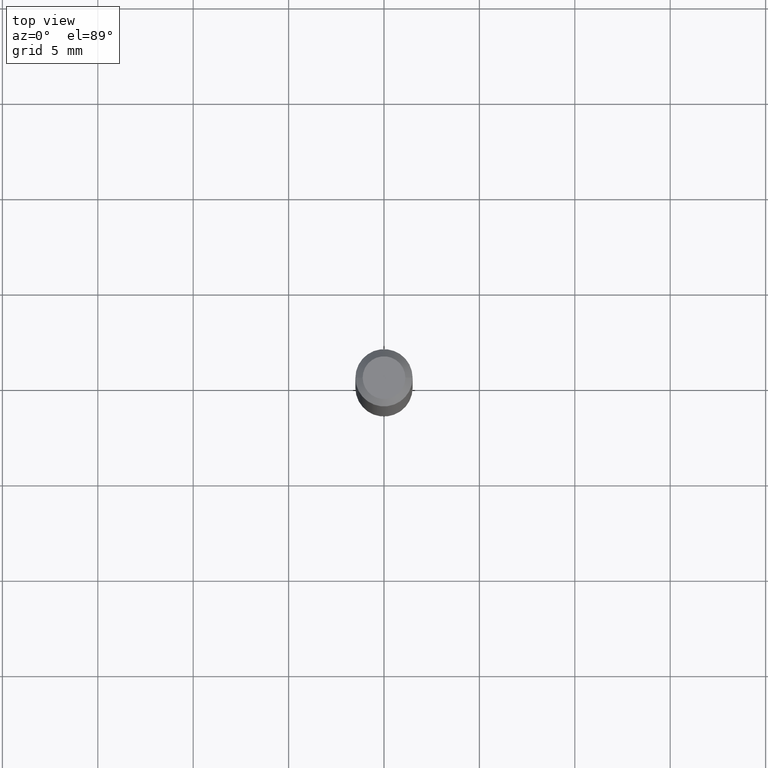
[diagram: clean part render]
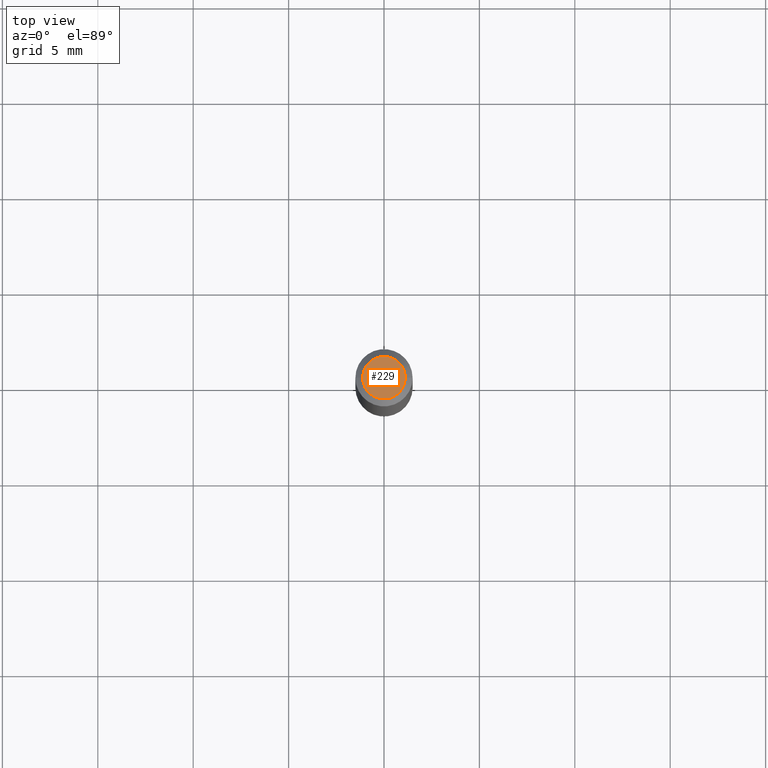
[diagram: same view with one face highlighted and labeled with its STEP entity id]
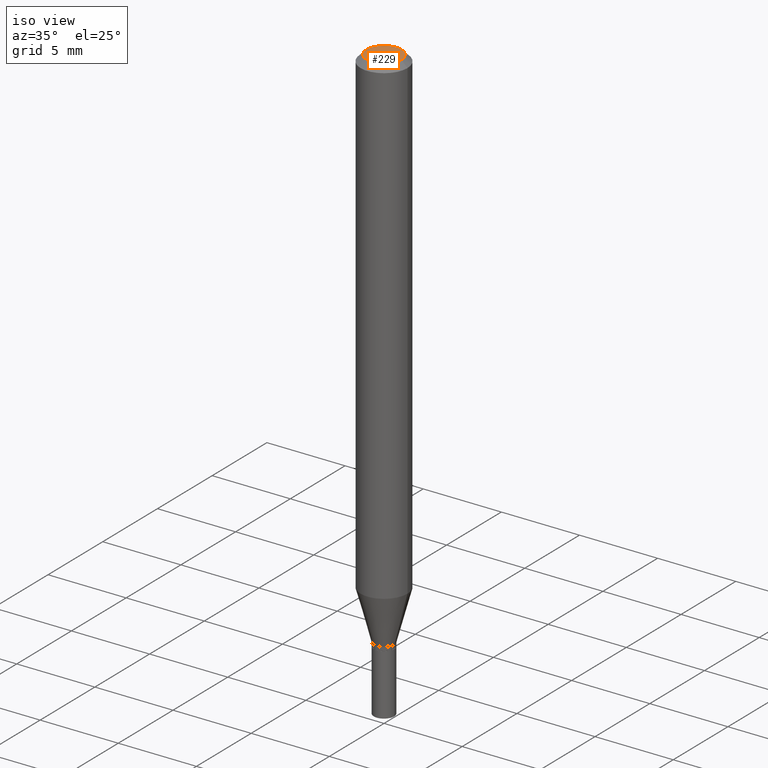
[diagram: same view with one face highlighted and labeled with its STEP entity id]
A machine part, top view. The second image highlights one B-rep face of the part: STEP entity #229.
A second angle (iso view) of the same face is appended — the face is thin or edge-on in the first view.
In plain terms, the highlighted planar face has unit normal (0, -0, -1).
Its self-contained STEP definition (entity closure, byte-faithful):
#20 = VERTEX_POINT ( 'NONE', #257 ) ;
#25 = ORIENTED_EDGE ( 'NONE', *, *, #351, .T. ) ;
#66 = CIRCLE ( 'NONE', #382, 0.04404999999999999888 ) ;
#68 = EDGE_LOOP ( 'NONE', ( #25, #74 ) ) ;
#74 = ORIENTED_EDGE ( 'NONE', *, *, #304, .T. ) ;
#78 = AXIS2_PLACEMENT_3D ( 'NONE', #234, #377, #202 ) ;
#129 = FACE_OUTER_BOUND ( 'NONE', #68, .T. ) ;
#147 = DIRECTION ( 'NONE',  ( 1.000000000000000000, -6.982962677686265922E-15, 4.819687581474398999E-29 ) ) ;
#180 = AXIS2_PLACEMENT_3D ( 'NONE', #278, #426, #147 ) ;
#202 = DIRECTION ( 'NONE',  ( -1.000000000000000000, 6.982962677686265922E-15, -4.876176775795935793E-29 ) ) ;
#229 = ADVANCED_FACE ( 'NONE', ( #129 ), #270, .F. ) ;
#234 = CARTESIAN_POINT ( 'NONE',  ( 3.075995059520799729E-16, 0.04404999999999999888, -3.177616157090649282E-16 ) ) ;
#247 = CARTESIAN_POINT ( 'NONE',  ( -0.04404999999999999888, 3.337856159934028715E-16, -3.279237254660510174E-16 ) ) ;
#257 = CARTESIAN_POINT ( 'NONE',  ( 0.04404999999999999888, -3.798447818264465995E-16, -3.279237254660463336E-16 ) ) ;
#270 = PLANE ( 'NONE',  #78 ) ;
#278 = CARTESIAN_POINT ( 'NONE',  ( 8.019272414352406998E-45, -1.144939568028632061E-30, -3.279237254660487495E-16 ) ) ;
#304 = EDGE_CURVE ( 'NONE', #20, #322, #328, .T. ) ;
#322 = VERTEX_POINT ( 'NONE', #247 ) ;
#328 = CIRCLE ( 'NONE', #180, 0.04404999999999999888 ) ;
#350 = DIRECTION ( 'NONE',  ( 1.000000000000000000, -6.982962677686265922E-15, 4.819687581474398999E-29 ) ) ;
#351 = EDGE_CURVE ( 'NONE', #322, #20, #66, .T. ) ;
#377 = DIRECTION ( 'NONE',  ( 2.438088387897960049E-29, -3.491481338843145188E-15, -1.000000000000000000 ) ) ;
#382 = AXIS2_PLACEMENT_3D ( 'NONE', #459, #419, #350 ) ;
#419 = DIRECTION ( 'NONE',  ( -2.445468806185136597E-29, 3.491481338843145583E-15, 1.000000000000000000 ) ) ;
#426 = DIRECTION ( 'NONE',  ( -2.445468806185136597E-29, 3.491481338843145583E-15, 1.000000000000000000 ) ) ;
#459 = CARTESIAN_POINT ( 'NONE',  ( 8.019272414352406998E-45, -1.144939568028632061E-30, -3.279237254660487495E-16 ) ) ;